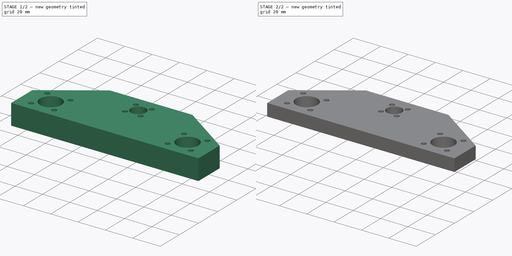
[diagram: build sequence overview — one tinted view per stage of 2, left to right]
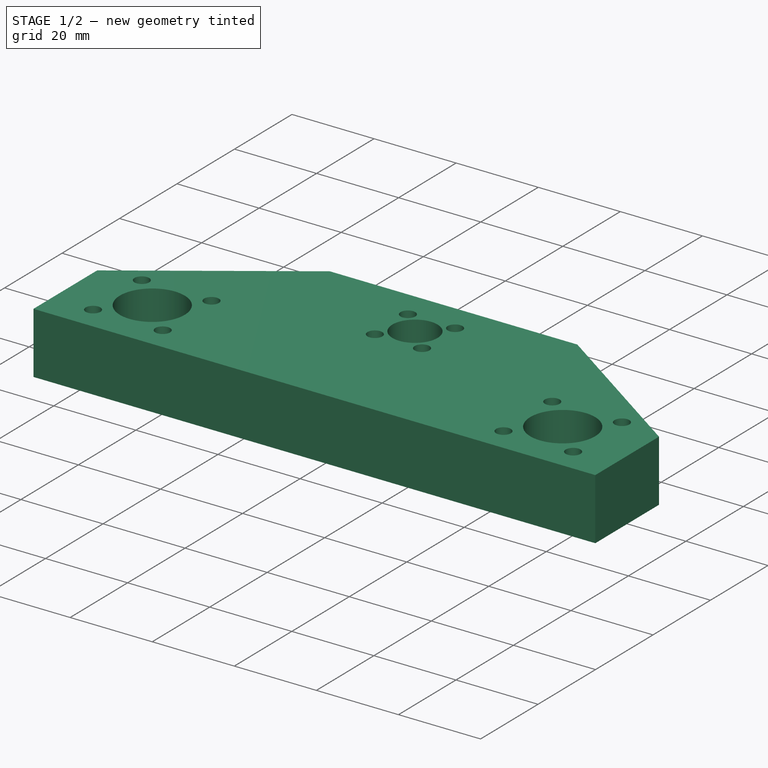
[diagram: stage 1 of 2 — iso view after this stage's code; geometry added in this stage tinted green]
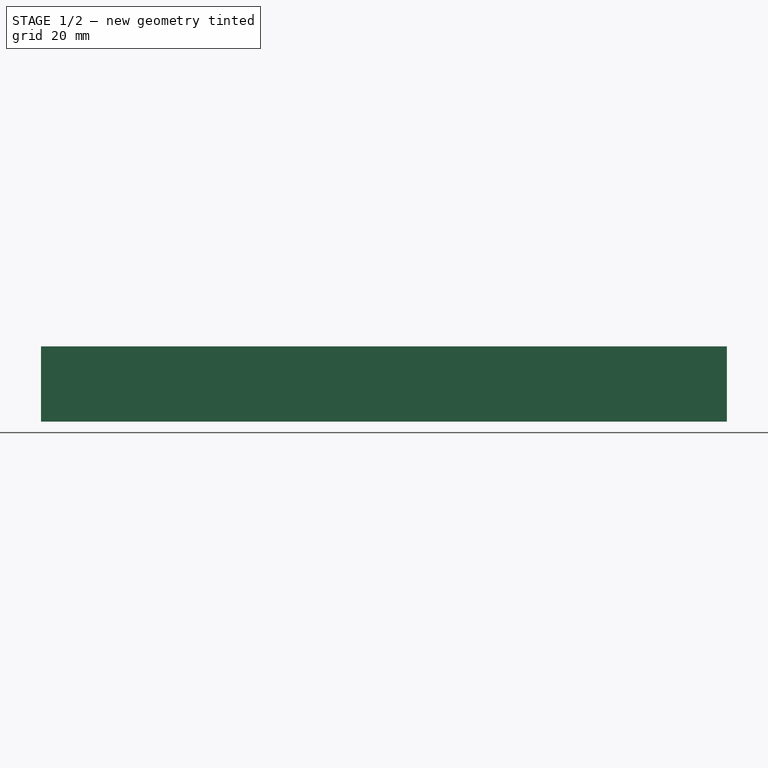
[diagram: stage 1 of 2 — front view after this stage's code; geometry added in this stage tinted green]
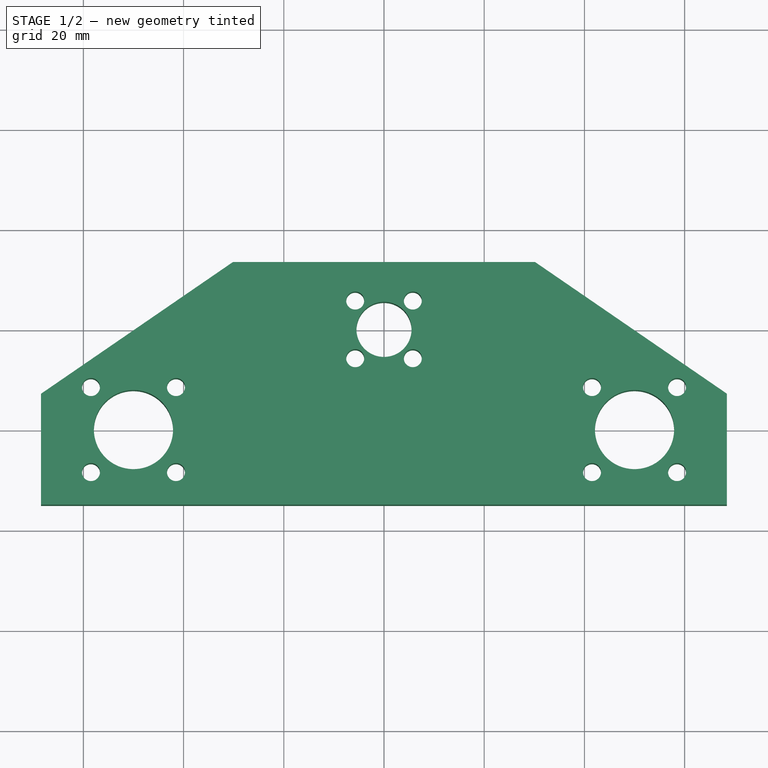
[diagram: stage 1 of 2 — top view after this stage's code; geometry added in this stage tinted green]
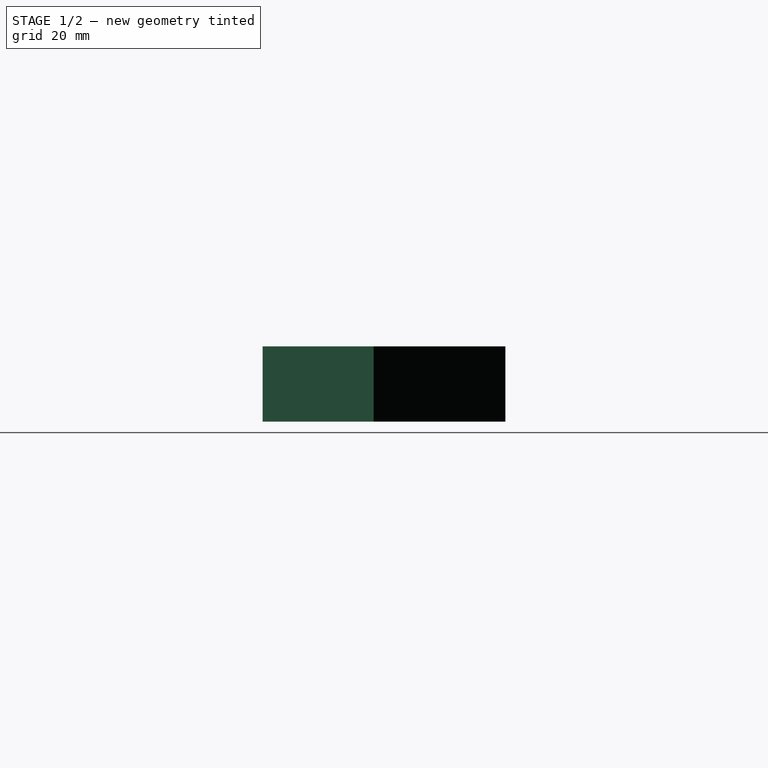
[diagram: stage 1 of 2 — right view after this stage's code; geometry added in this stage tinted green]
FCSTD DOCUMENT  (FreeCAD 0.16R6712 (Git))
Label: Suporte V
License: All rights reserved
LicenseURL: http://en.wikipedia.org/wiki/All_rights_reserved
objects: Sketcher::SketchObject×2, PartDesign::Pad×1, PartDesign::Pocket×1
note: 6 computed .brp shape members not serialized (recipe doc carries the construction recipe); baked Part::Feature solids carry a one-line shape summary decoded from their .brp

FEATURE [Sketcher::SketchObject] Sketch  label="sk Base"
  sketch-geometry (33):
    g0: Circle CenterX=0 CenterY=0 CenterZ=0 NormalX=0 NormalY=0 NormalZ=1 Radius=5.5
    g1: LineSegment [constr] StartX=0 StartY=0 StartZ=0 EndX=0 EndY=-20 EndZ=0
    g2: LineSegment [constr] StartX=-50 StartY=-20 StartZ=0 EndX=50 EndY=-20 EndZ=0
    g3: LineSegment [constr] StartX=-5.75 StartY=5.75 StartZ=0 EndX=5.75 EndY=5.75 EndZ=0
    g4: LineSegment [constr] StartX=5.75 StartY=5.75 StartZ=0 EndX=5.75 EndY=-5.75 EndZ=0
    g5: LineSegment [constr] StartX=5.75 StartY=-5.75 StartZ=0 EndX=-5.75 EndY=-5.75 EndZ=0
    g6: LineSegment [constr] StartX=-5.75 StartY=-5.75 StartZ=0 EndX=-5.75 EndY=5.75 EndZ=0
    g7: Circle CenterX=-5.75 CenterY=5.75 CenterZ=0 NormalX=0 NormalY=0 NormalZ=1 Radius=1.8
    g8: Circle CenterX=5.75 CenterY=5.75 CenterZ=0 NormalX=0 NormalY=0 NormalZ=1 Radius=1.8
    g9: Circle CenterX=5.75 CenterY=-5.75 CenterZ=0 NormalX=0 NormalY=0 NormalZ=1 Radius=1.8
    g10: Circle CenterX=-5.75 CenterY=-5.75 CenterZ=0 NormalX=0 NormalY=0 NormalZ=1 Radius=1.8
    g11: LineSegment StartX=-68.443 StartY=-12.8489 StartZ=0 EndX=-30.1461 EndY=13.4415 EndZ=0
    g12: LineSegment StartX=-30.1461 StartY=13.4415 StartZ=0 EndX=30.1461 EndY=13.4415 EndZ=0
    g13: LineSegment StartX=30.1461 StartY=13.4415 StartZ=0 EndX=68.443 EndY=-12.8489 EndZ=0
    g14: LineSegment StartX=68.443 StartY=-12.8489 StartZ=0 EndX=68.443 EndY=-35 EndZ=0
    g15: LineSegment StartX=68.443 StartY=-35 StartZ=0 EndX=-68.443 EndY=-35 EndZ=0
    g16: LineSegment StartX=-68.443 StartY=-35 StartZ=0 EndX=-68.443 EndY=-12.8489 EndZ=0
    g17: LineSegment [constr] StartX=-58.4853 StartY=-28.4853 StartZ=0 EndX=-41.5147 EndY=-11.5147 EndZ=0
    g18: LineSegment [constr] StartX=-58.4853 StartY=-11.5147 StartZ=0 EndX=-41.5147 EndY=-28.4853 EndZ=0
    g19: GeomPoint [constr] X=-50 Y=-20 Z=0
    g20: Circle CenterX=-58.4853 CenterY=-28.4853 CenterZ=0 NormalX=0 NormalY=0 NormalZ=1 Radius=1.8
    g21: Circle CenterX=-41.5147 CenterY=-11.5147 CenterZ=0 NormalX=0 NormalY=0 NormalZ=1 Radius=1.8
    g22: Circle CenterX=-41.5147 CenterY=-28.4853 CenterZ=0 NormalX=0 NormalY=0 NormalZ=1 Radius=1.8
    g23: Circle CenterX=-58.4853 CenterY=-11.5147 CenterZ=0 NormalX=0 NormalY=0 NormalZ=1 Radius=1.8
    g24: Circle CenterX=-50 CenterY=-20 CenterZ=0 NormalX=0 NormalY=0 NormalZ=1 Radius=7.9
    g25: LineSegment [constr] StartX=41.5147 StartY=-28.4853 StartZ=0 EndX=58.4853 EndY=-11.5147 EndZ=0
    g26: LineSegment [constr] StartX=41.5147 StartY=-11.5147 StartZ=0 EndX=58.4853 EndY=-28.4853 EndZ=0
    g27: GeomPoint [constr] X=50 Y=-20 Z=0
    g28: Circle CenterX=41.5147 CenterY=-28.4853 CenterZ=0 NormalX=0 NormalY=0 NormalZ=1 Radius=1.8
    g29: Circle CenterX=58.4853 CenterY=-11.5147 CenterZ=0 NormalX=0 NormalY=0 NormalZ=1 Radius=1.8
    g30: Circle CenterX=58.4853 CenterY=-28.4853 CenterZ=0 NormalX=0 NormalY=0 NormalZ=1 Radius=1.8
    g31: Circle CenterX=41.5147 CenterY=-11.5147 CenterZ=0 NormalX=0 NormalY=0 NormalZ=1 Radius=1.8
    g32: Circle CenterX=50 CenterY=-20 CenterZ=0 NormalX=0 NormalY=0 NormalZ=1 Radius=7.9
  constraints (69):
    c: Coincident(g-1,g0)
    c: Radius(g0) = 5.5
    c: Coincident(g-1,g1)
    c: Vertical(g1)
    c: Horizontal(g2)
    c: Symmetric(g2,g2,g1)
    c: DistanceX(g2,g2) = 100
    c: Coincident(g3,g4)
    c: Coincident(g4,g5)
    c: Coincident(g5,g6)
    c: Coincident(g6,g3)
    c: Horizontal(g3)
    c: Horizontal(g5)
    c: Vertical(g4)
    c: Vertical(g6)
    c: Coincident(g5,g10)
    c: Coincident(g7,g3)
    c: Coincident(g8,g3)
    c: Coincident(g4,g9)
    c: Symmetric(g3,g5,g-1)
    c: DistanceY(g2,g-1) = 20
    c: Coincident(g11,g12)
    c: Coincident(g12,g13)
    c: Coincident(g13,g14)
    c: Coincident(g14,g15)
    c: Coincident(g15,g16)
    c: Coincident(g11,g16)
    c: Horizontal(g12)
    c: Horizontal(g15)
    c: Vertical(g16)
    c: Vertical(g14)
    c: Symmetric(g11,g12,g-2)
    c: Symmetric(g15,g14,g-2)
    c: Equal(g16,g14)
    c: DistanceY(g15,g-1) = 35
    c: Distance(g17) = 24
    c: Angle(g17) = 0.785398
    c: Equal(g17,g18)
    c: Symmetric(g17,g17,g18)
    c: Symmetric(g17,g17,g19)
    c: Symmetric(g18,g18,g19)
    c: Radius(g20) = 1.8
    c: Equal(g20,g21) = 1.8
    c: Equal(g20,g22) = 1.8
    c: Equal(g20,g23) = 1.8
    c: Coincident(g18,g23)
    c: Coincident(g17,g20)
    c: Coincident(g18,g22)
    c: Coincident(g17,g21)
    c: Coincident(g2,g19)
    c: Radius(g24) = 7.9
    c: Coincident(g2,g24)
    c: Equal(g17,g25) = 24
    c: Parallel(g17,g25) = 0.785398
    c: Equal(g25,g26)
    c: Symmetric(g25,g25,g26)
    c: Symmetric(g25,g25,g27)
    c: Symmetric(g26,g26,g27)
    c: Equal(g20,g28) = 1.8
    c: Equal(g28,g29) = 1.8
    c: Equal(g28,g30) = 1.8
    c: Equal(g28,g31) = 1.8
    c: Coincident(g26,g31)
    c: Coincident(g25,g28)
    c: Coincident(g26,g30)
    c: Coincident(g25,g29)
    c: Equal(g24,g32) = 7.7
    c: Coincident(g27,g2)
    c: Coincident(g2,g32)
FEATURE [PartDesign::Pad] Pad
  Length = 15
  Length2 = 100
  Sketch = -> Sketch
  Type = 0
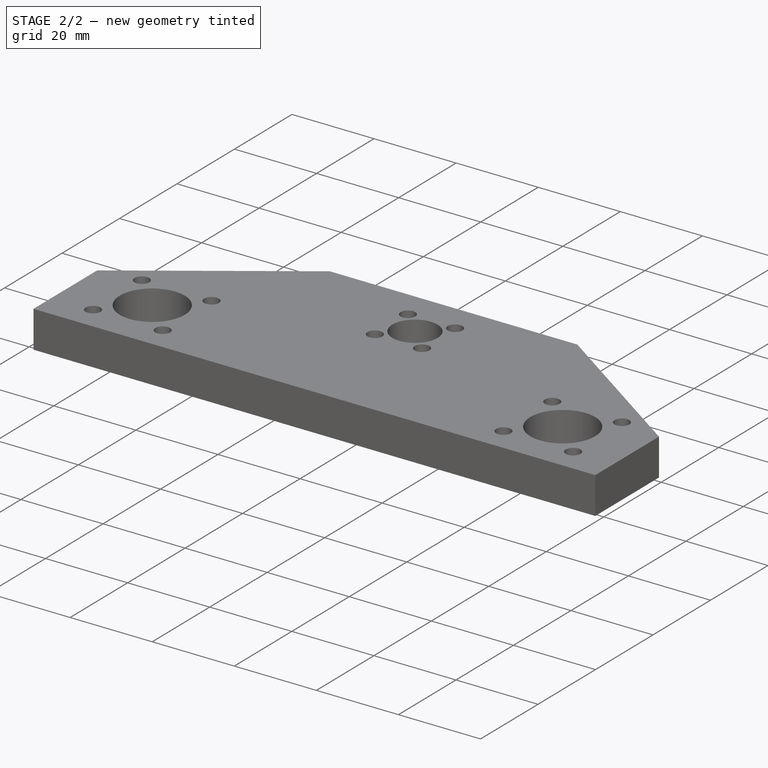
[diagram: stage 2 of 2 — iso view after this stage's code; geometry added in this stage tinted green]
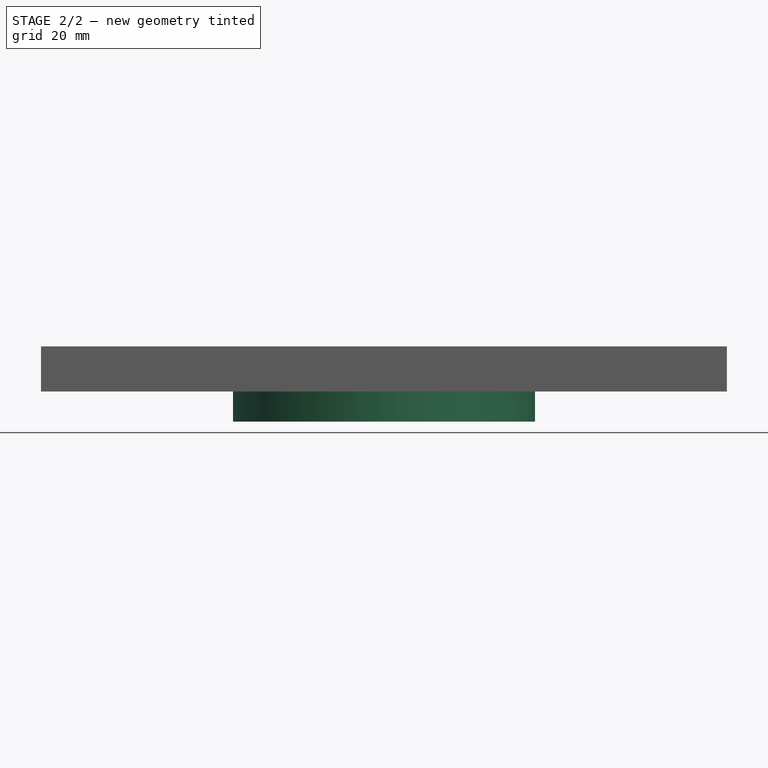
[diagram: stage 2 of 2 — front view after this stage's code; geometry added in this stage tinted green]
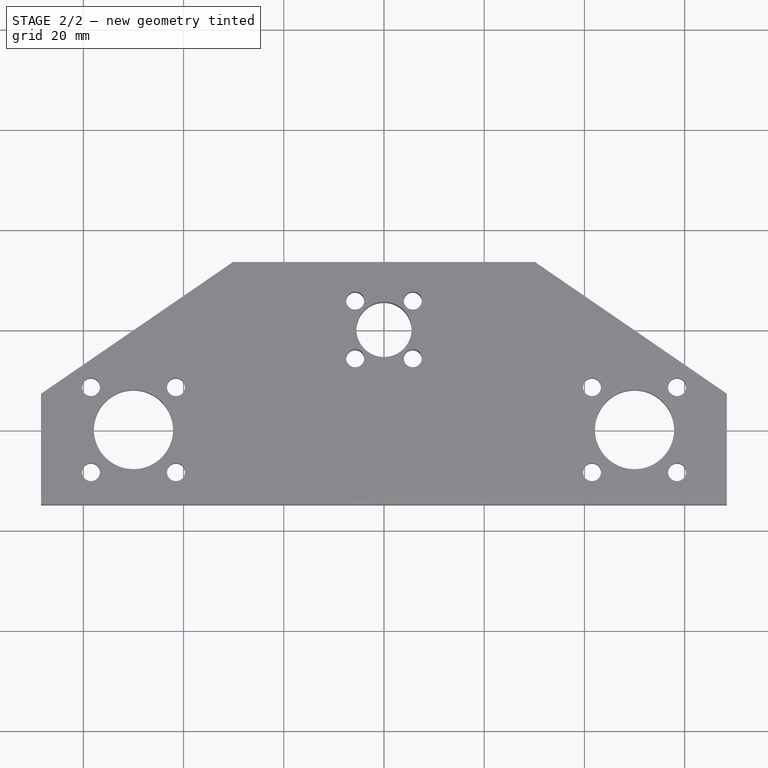
[diagram: stage 2 of 2 — top view after this stage's code; geometry added in this stage tinted green]
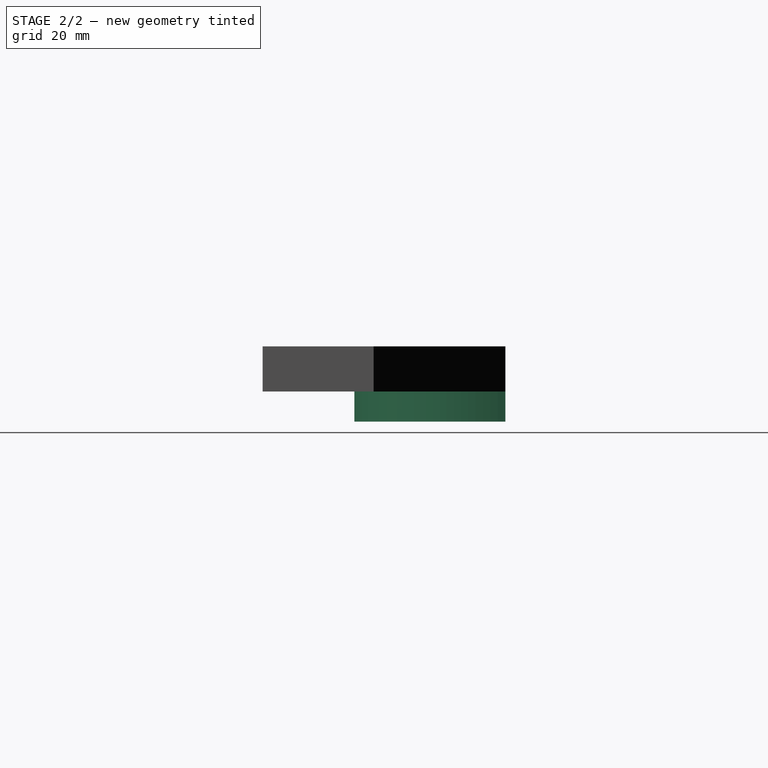
[diagram: stage 2 of 2 — right view after this stage's code; geometry added in this stage tinted green]
FEATURE [Sketcher::SketchObject] Sketch001
  ExternalGeometry = -> [Pad]
  Placement = pos=(0,0,0) rot=(1,0,0;3.14159rad)
  Support = -> Pad [Face22]
  sketch-geometry (6):
    g0: LineSegment StartX=-30.1461 StartY=-13.4415 StartZ=0 EndX=-68.443 EndY=12.8489 EndZ=0
    g1: LineSegment StartX=-68.443 StartY=12.8489 StartZ=0 EndX=-68.443 EndY=35 EndZ=0
    g2: LineSegment StartX=-68.443 StartY=35 StartZ=0 EndX=68.443 EndY=35 EndZ=0
    g3: LineSegment StartX=68.443 StartY=35 StartZ=0 EndX=68.443 EndY=12.8489 EndZ=0
    g4: LineSegment StartX=68.443 StartY=12.8489 StartZ=0 EndX=30.1461 EndY=-13.4415 EndZ=0
    g5: ArcOfCircle CenterX=0 CenterY=-13.4415 CenterZ=0 NormalX=0 NormalY=0 NormalZ=1 Radius=30.1461 StartAngle=0 EndAngle=3.14159
  constraints (13):
    c: Coincident(g0,g1)
    c: Coincident(g1,g2)
    c: Coincident(g2,g3)
    c: Coincident(g3,g4)
    c: Coincident(g-5,g4)
    c: Coincident(g-5,g5)
    c: Coincident(g-5,g5)
    c: Coincident(g-5,g0)
    c: PointOnObject(g5,g-5)
    c: Coincident(g0,g-4)
    c: Coincident(g1,g-4)
    c: Coincident(g2,g-3)
    c: Coincident(g3,g-3)
FEATURE [PartDesign::Pocket] Pocket
  Length = 6
  Sketch = -> Sketch001
  Type = 0
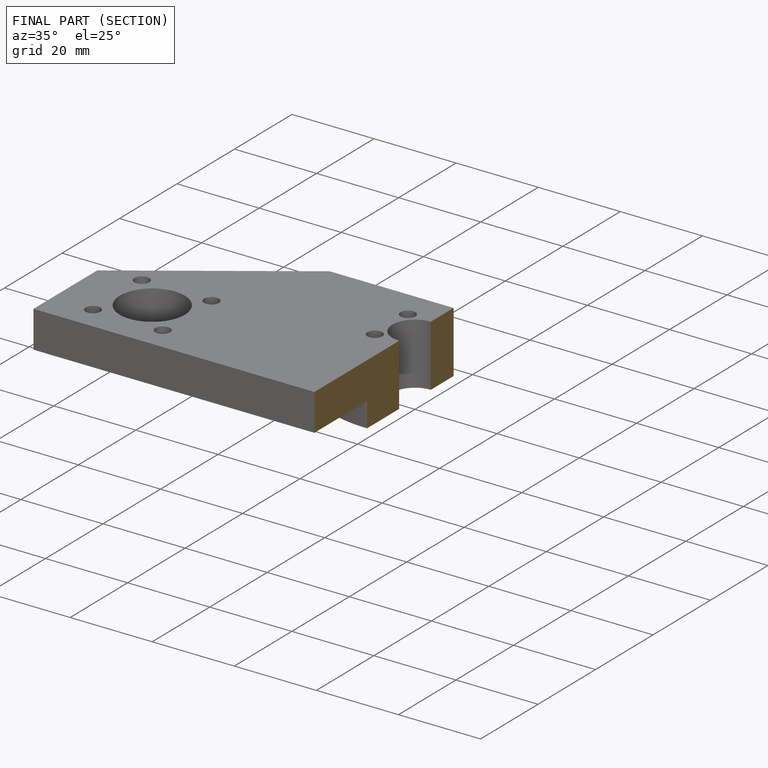
[diagram: finished part — half-section view (interior)]
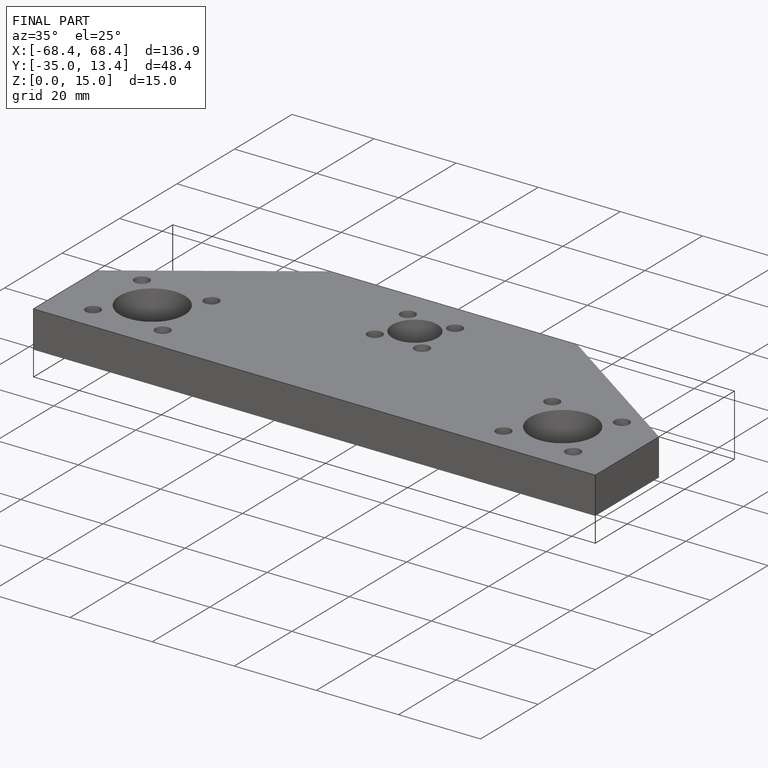
[diagram: finished part — iso view with bounding-box wireframe]
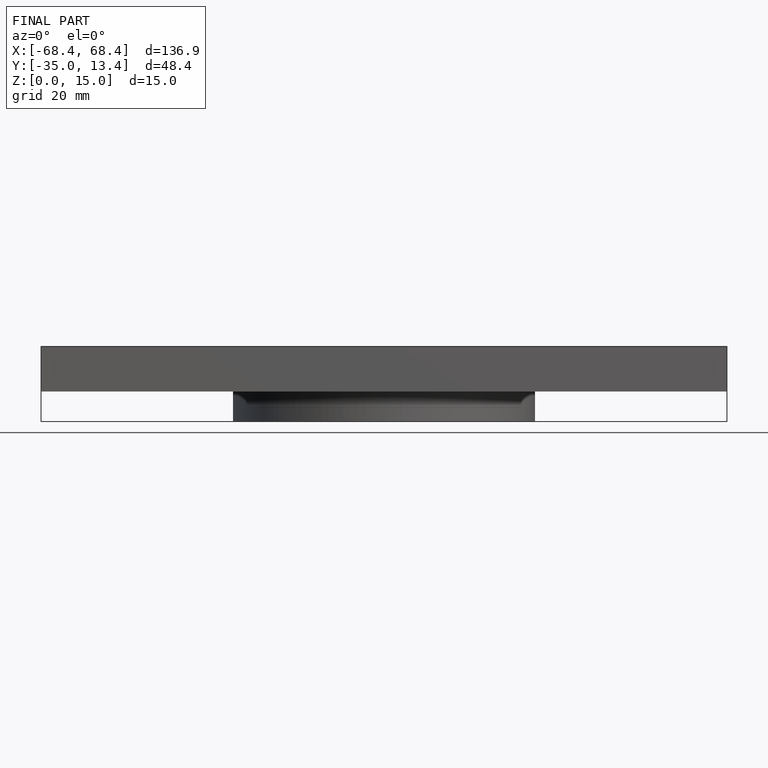
[diagram: finished part — front view with bounding-box wireframe]
